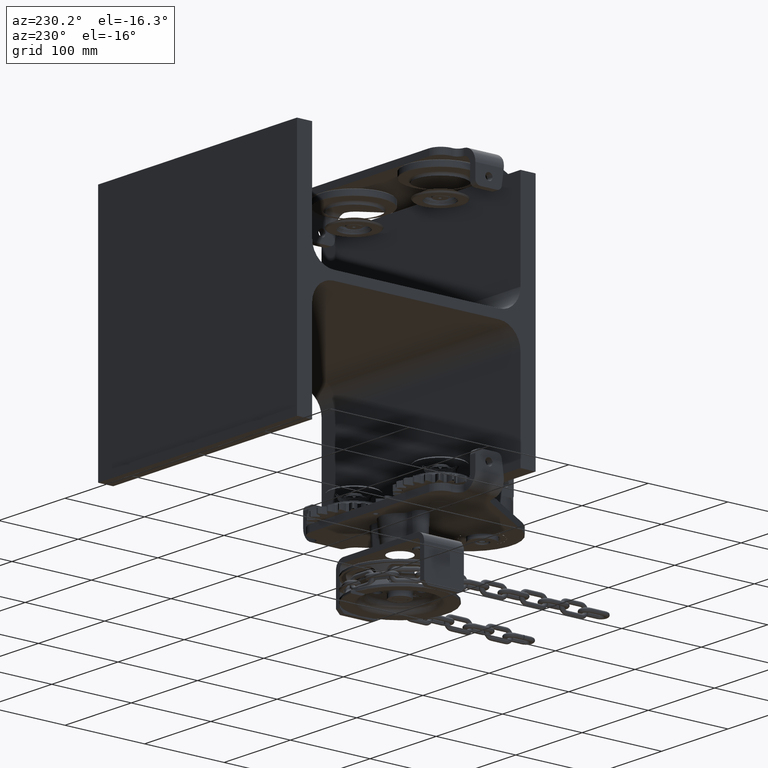
[diagram: clean part render]
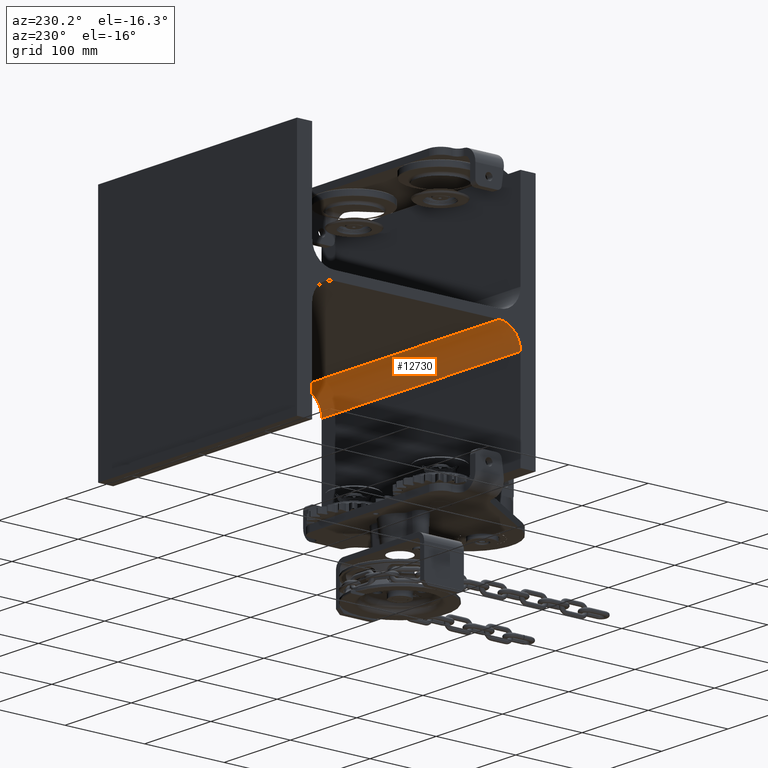
[diagram: same view with one face highlighted and labeled with its STEP entity id]
A machine part, auxiliary view. The second image highlights one B-rep face of the part: STEP entity #12730.
In plain terms, the highlighted cylindrical surface (edge-blend (fillet) strip) has radius 27 mm, axis along (-1, 0, 0).
Its self-contained STEP definition (entity closure, byte-faithful):
#482 = EDGE_CURVE ( 'NONE', #10572, #35718, #13258, .T. ) ;
#2406 = CARTESIAN_POINT ( 'NONE',  ( -150.0000000000000300, -103.9999999999986200, -5.499999999999627000 ) ) ;
#10572 = VERTEX_POINT ( 'NONE', #51649 ) ;
#11851 = EDGE_CURVE ( 'NONE', #17298, #14308, #34518, .T. ) ;
#12388 = EDGE_CURVE ( 'NONE', #17298, #10572, #15209, .T. ) ;
#12730 = ADVANCED_FACE ( 'NONE', ( #39841 ), #32812, .F. ) ;
#13258 = CIRCLE ( 'NONE', #22796, 26.99999999999999600 ) ;
#13320 = VECTOR ( 'NONE', #45217, 1000.000000000000000 ) ;
#14308 = VERTEX_POINT ( 'NONE', #23330 ) ;
#15095 = ORIENTED_EDGE ( 'NONE', *, *, #482, .T. ) ;
#15209 = LINE ( 'NONE', #24872, #13320 ) ;
#15294 = DIRECTION ( 'NONE',  ( -1.000000000000000000, 2.645435875969847300E-017, 3.677613769070833000E-016 ) ) ;
#15795 = CARTESIAN_POINT ( 'NONE',  ( 149.9999999999999700, -130.9999999999987500, -32.49999999999958100 ) ) ;
#16902 = AXIS2_PLACEMENT_3D ( 'NONE', #41717, #17888, #17710 ) ;
#17298 = VERTEX_POINT ( 'NONE', #15795 ) ;
#17710 = DIRECTION ( 'NONE',  ( 0.0000000000000000000, 4.111937128241321400E-015, 1.000000000000000000 ) ) ;
#17888 = DIRECTION ( 'NONE',  ( -1.000000000000000000, 2.645435875969847300E-017, 3.677613769070833000E-016 ) ) ;
#17922 = EDGE_LOOP ( 'NONE', ( #15095, #25893, #45732, #35236 ) ) ;
#19362 = DIRECTION ( 'NONE',  ( 0.0000000000000000000, 4.111937128241321400E-015, 1.000000000000000000 ) ) ;
#22796 = AXIS2_PLACEMENT_3D ( 'NONE', #28573, #32633, #29797 ) ;
#23330 = CARTESIAN_POINT ( 'NONE',  ( 149.9999999999999700, -103.9999999999986500, -5.499999999999736200 ) ) ;
#24872 = CARTESIAN_POINT ( 'NONE',  ( 149.9999999999999700, -130.9999999999987500, -32.49999999999958100 ) ) ;
#25893 = ORIENTED_EDGE ( 'NONE', *, *, #42378, .F. ) ;
#28573 = CARTESIAN_POINT ( 'NONE',  ( -150.0000000000000300, -103.9999999999987600, -32.49999999999961600 ) ) ;
#28667 = DIRECTION ( 'NONE',  ( -1.000000000000000000, 2.645435875969847300E-017, 3.677613769070833000E-016 ) ) ;
#29797 = DIRECTION ( 'NONE',  ( 0.0000000000000000000, 4.111937128241321400E-015, 1.000000000000000000 ) ) ;
#32414 = LINE ( 'NONE', #40726, #33649 ) ;
#32633 = DIRECTION ( 'NONE',  ( -1.000000000000000000, 2.645435875969847300E-017, 3.677613769070833000E-016 ) ) ;
#32812 = CYLINDRICAL_SURFACE ( 'NONE', #36222, 26.99999999999999600 ) ;
#33649 = VECTOR ( 'NONE', #28667, 1000.000000000000000 ) ;
#34518 = CIRCLE ( 'NONE', #16902, 26.99999999999999600 ) ;
#35236 = ORIENTED_EDGE ( 'NONE', *, *, #12388, .T. ) ;
#35718 = VERTEX_POINT ( 'NONE', #2406 ) ;
#35745 = CARTESIAN_POINT ( 'NONE',  ( 149.9999999999999700, -103.9999999999987900, -32.49999999999972300 ) ) ;
#36222 = AXIS2_PLACEMENT_3D ( 'NONE', #35745, #15294, #19362 ) ;
#39841 = FACE_OUTER_BOUND ( 'NONE', #17922, .T. ) ;
#40726 = CARTESIAN_POINT ( 'NONE',  ( 149.9999999999999700, -103.9999999999986500, -5.499999999999736200 ) ) ;
#41717 = CARTESIAN_POINT ( 'NONE',  ( 149.9999999999999700, -103.9999999999987900, -32.49999999999972300 ) ) ;
#42378 = EDGE_CURVE ( 'NONE', #14308, #35718, #32414, .T. ) ;
#45217 = DIRECTION ( 'NONE',  ( -1.000000000000000000, 2.645435875969847300E-017, 3.677613769070833000E-016 ) ) ;
#45732 = ORIENTED_EDGE ( 'NONE', *, *, #11851, .F. ) ;
#51649 = CARTESIAN_POINT ( 'NONE',  ( -150.0000000000000300, -130.9999999999987200, -32.49999999999947400 ) ) ;